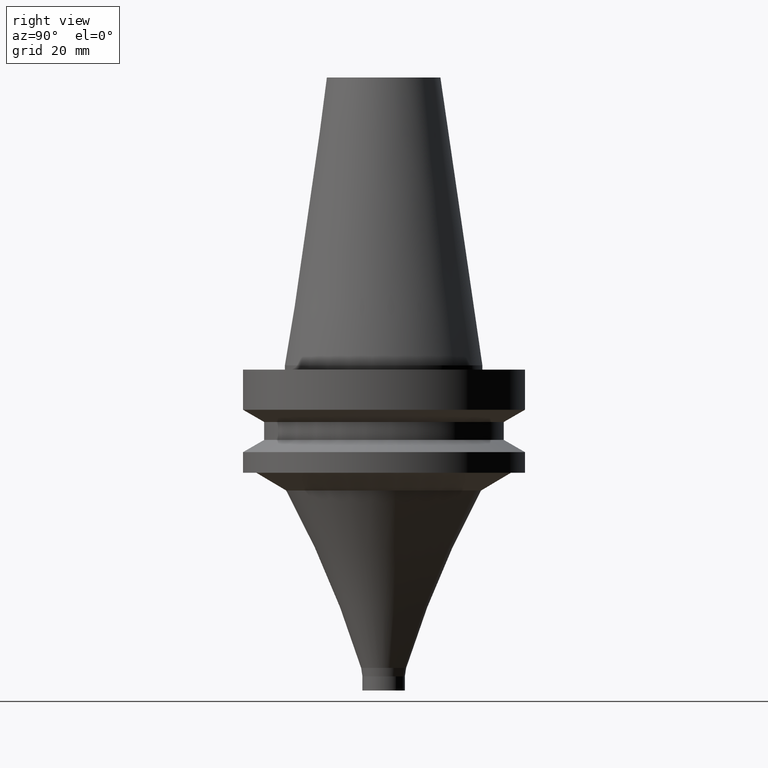
[diagram: clean part render]
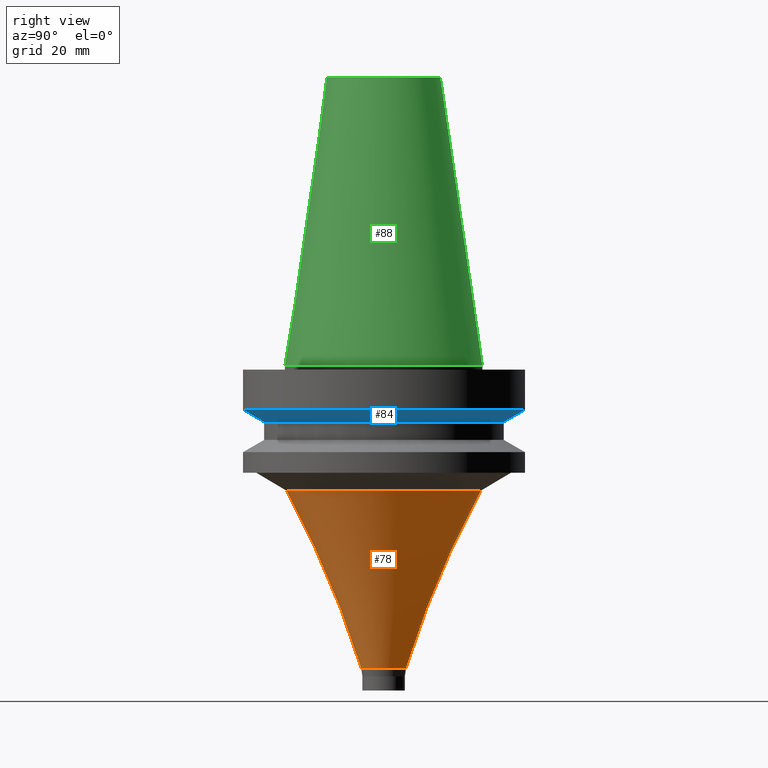
[diagram: same view with three faces highlighted in distinct colors, each labeled with its STEP entity id]
A machine part, right view with three faces highlighted in distinct colors.
Their STEP definitions:

[orange] entity #78 — the highlighted toroidal blend (fillet) surface has major radius 342.099 mm and minor (blend) radius 350 mm.
#78=ADVANCED_FACE('',(#99,#100),#101,.F.);
#99=FACE_BOUND('',#142,.T.);
#100=FACE_BOUND('',#143,.T.);
#101=TOROIDAL_SURFACE('',#144,342.098491701725,350.0);
#142=EDGE_LOOP('',(#191));
#143=EDGE_LOOP('',(#192));
#144=AXIS2_PLACEMENT_3D('',#193,#194,#195);
#191=ORIENTED_EDGE('',*,*,#253,.F.);
#192=ORIENTED_EDGE('',*,*,#252,.T.);
#193=CARTESIAN_POINT('',(1.29305694929997E-014,8.27045578468074E-014,-211.172225363304));
#194=DIRECTION('',(-6.12323399573677E-017,-4.47418976075613E-016,1.0));
#195=DIRECTION('',(1.0,4.82715273076902E-033,6.12323399573677E-017));
#252=EDGE_CURVE('',#268,#268,#269,.T.);
#253=EDGE_CURVE('',#270,#270,#271,.T.);
#268=VERTEX_POINT('',#296);
#269=CIRCLE('',#297,7.95298553818469);
#270=VERTEX_POINT('',#298);
#271=CIRCLE('',#299,34.4521263126777);
#296=CARTESIAN_POINT('',(6.55335115714257E-015,7.9529855381847,-107.024346312835));
#297=AXIS2_PLACEMENT_3D('',#326,#327,#328);
#298=CARTESIAN_POINT('',(2.7112397878085E-015,34.4521263126777,-44.2779059186072));
#299=AXIS2_PLACEMENT_3D('',#329,#330,#331);
#326=CARTESIAN_POINT('',(6.55335115714257E-015,1.01900250877888E-014,-107.024346312835));
#327=DIRECTION('',(-6.12323399573677E-017,-4.47418976075613E-016,1.0));
#328=DIRECTION('',(-3.22236635772083E-032,1.0,4.47418976075613E-016));
#329=CARTESIAN_POINT('',(2.7112397878085E-015,-1.78839230257861E-014,-44.2779059186073));
#330=DIRECTION('',(-6.12323399573677E-017,-4.47418976075613E-016,1.0));
#331=DIRECTION('',(-3.22236635772083E-032,1.0,4.47418976075613E-016));

[blue] entity #84 — the highlighted conical surface has half-angle 60 deg.
#84=ADVANCED_FACE('',(#117,#118),#119,.T.);
#117=FACE_BOUND('',#160,.T.);
#118=FACE_BOUND('',#161,.T.);
#119=CONICAL_SURFACE('',#162,46.2500000000001,1.04719755119661);
#160=EDGE_LOOP('',(#221));
#161=EDGE_LOOP('',(#222));
#162=AXIS2_PLACEMENT_3D('',#223,#224,#225);
#221=ORIENTED_EDGE('',*,*,#259,.F.);
#222=ORIENTED_EDGE('',*,*,#258,.T.);
#223=CARTESIAN_POINT('',(1.09391964217128E-015,-2.97015299317329E-014,-17.865063509461));
#224=DIRECTION('',(-6.12323399573677E-017,-4.47418976075613E-016,1.0));
#225=DIRECTION('',(-3.22236635772083E-032,1.0,4.47418976075613E-016));
#258=EDGE_CURVE('',#280,#280,#281,.T.);
#259=EDGE_CURVE('',#282,#282,#283,.T.);
#280=VERTEX_POINT('',#308);
#281=CIRCLE('',#309,42.5000000000003);
#282=VERTEX_POINT('',#310);
#283=CIRCLE('',#311,50.0);
#308=CARTESIAN_POINT('',(1.22649154701188E-015,42.5000000000003,-20.0301270189219));
#309=AXIS2_PLACEMENT_3D('',#344,#345,#346);
#310=CARTESIAN_POINT('',(9.61347737330673E-016,49.9999999999999,-15.7));
#311=AXIS2_PLACEMENT_3D('',#347,#348,#349);
#344=CARTESIAN_POINT('',(1.22649154701188E-015,-2.87328394331912E-014,-20.0301270189219));
#345=DIRECTION('',(-6.12323399573677E-017,-4.47418976075613E-016,1.0));
#346=DIRECTION('',(-3.22236635772083E-032,1.0,4.47418976075613E-016));
#347=CARTESIAN_POINT('',(9.61347737330674E-016,-3.06702204302746E-014,-15.7));
#348=DIRECTION('',(-6.12323399573677E-017,-4.47418976075613E-016,1.0));
#349=DIRECTION('',(-3.22236635772083E-032,1.0,4.47418976075613E-016));

[green] entity #88 — the highlighted conical surface has half-angle 8.297 deg.
#88=ADVANCED_FACE('',(#129,#130),#131,.T.);
#129=FACE_BOUND('',#172,.T.);
#130=FACE_BOUND('',#173,.T.);
#131=CONICAL_SURFACE('',#174,27.5020833333334,0.144812498238939);
#172=EDGE_LOOP('',(#241));
#173=EDGE_LOOP('',(#242));
#174=AXIS2_PLACEMENT_3D('',#243,#244,#245);
#241=ORIENTED_EDGE('',*,*,#263,.F.);
#242=ORIENTED_EDGE('',*,*,#262,.T.);
#243=CARTESIAN_POINT('',(-3.11672610383001E-015,-6.04683242369104E-014,50.9));
#244=DIRECTION('',(6.12323399573677E-017,4.47418976075613E-016,-1.0));
#245=DIRECTION('',(-3.22236635772083E-032,1.0,4.47418976075613E-016));
#262=EDGE_CURVE('',#288,#288,#289,.T.);
#263=EDGE_CURVE('',#290,#290,#291,.T.);
#288=VERTEX_POINT('',#316);
#289=CIRCLE('',#317,34.925);
#290=VERTEX_POINT('',#318);
#291=CIRCLE('',#319,20.0791666666668);
#316=CARTESIAN_POINT('',(3.04751304840905E-030,34.925,-5.25229210539779E-014));
#317=AXIS2_PLACEMENT_3D('',#356,#357,#358);
#318=CARTESIAN_POINT('',(-6.23345220766003E-015,20.0791666666667,101.8));
#319=AXIS2_PLACEMENT_3D('',#359,#360,#361);
#356=CARTESIAN_POINT('',(4.35081943503005E-030,-3.76946983546617E-014,-7.105427357601E-014));
#357=DIRECTION('',(-6.12323399573677E-017,-4.47418976075613E-016,1.0));
#358=DIRECTION('',(-3.22236635772083E-032,1.0,4.47418976075613E-016));
#359=CARTESIAN_POINT('',(-6.23345220766003E-015,-8.32419501191592E-014,101.8));
#360=DIRECTION('',(-6.12323399573676E-017,-4.47418976075613E-016,1.0));
#361=DIRECTION('',(-3.22236635772083E-032,1.0,4.47418976075613E-016));